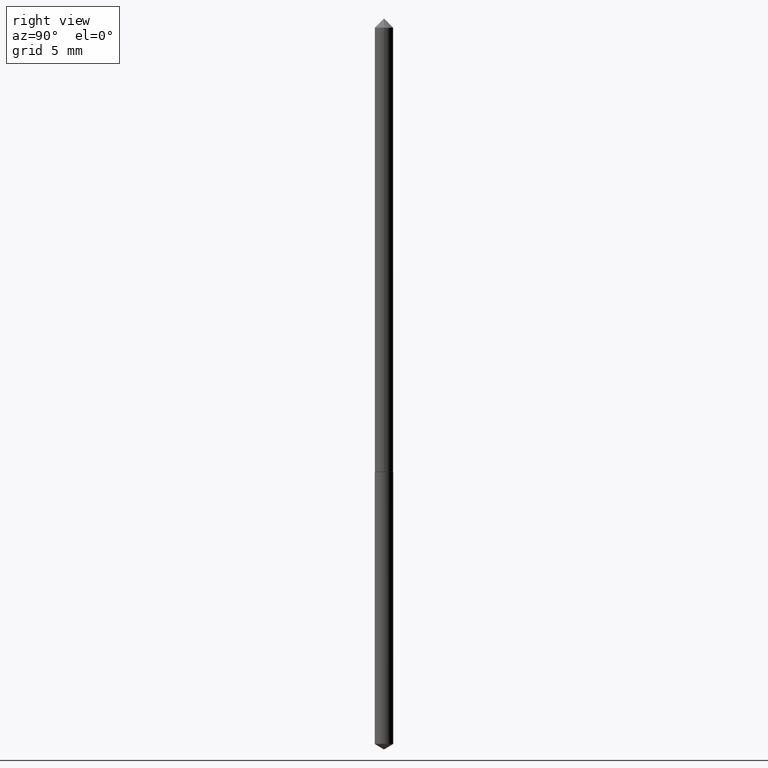
[diagram: clean part render]
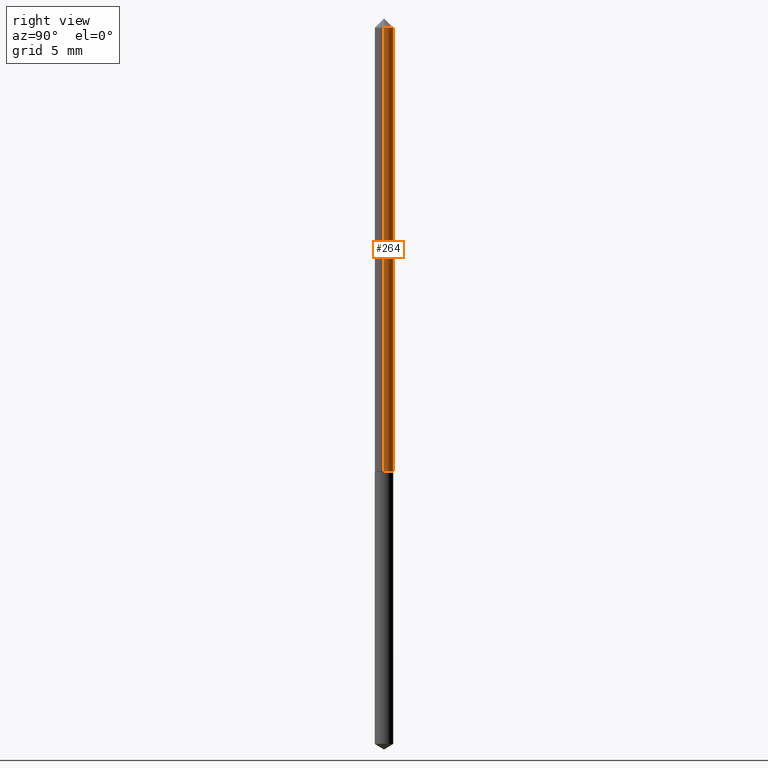
[diagram: same view with one face highlighted and labeled with its STEP entity id]
A machine part, right view. The second image highlights one B-rep face of the part: STEP entity #264.
In plain terms, the highlighted cylindrical surface (edge-blend (fillet) strip) has radius 0.3962 mm, axis along (-0, 0, 1).
Its self-contained STEP definition (entity closure, byte-faithful):
#1 = DIRECTION ( 'NONE',  ( -2.445468806185136597E-29, 3.491481338843145583E-15, 1.000000000000000000 ) ) ;
#12 = VERTEX_POINT ( 'NONE', #126 ) ;
#26 = DIRECTION ( 'NONE',  ( -2.445468806185136597E-29, 3.491481338843145583E-15, 1.000000000000000000 ) ) ;
#48 = CARTESIAN_POINT ( 'NONE',  ( 7.642090019328600035E-31, -1.091087918388489897E-16, -0.03125000000000020123 ) ) ;
#56 = CYLINDRICAL_SURFACE ( 'NONE', #228, 0.01560000000000004959 ) ;
#63 = ORIENTED_EDGE ( 'NONE', *, *, #338, .T. ) ;
#67 = EDGE_LOOP ( 'NONE', ( #63, #206, #125, #354 ) ) ;
#71 = CIRCLE ( 'NONE', #168, 0.01560000000000000275 ) ;
#99 = EDGE_CURVE ( 'NONE', #296, #263, #157, .T. ) ;
#101 = LINE ( 'NONE', #128, #243 ) ;
#106 = DIRECTION ( 'NONE',  ( 1.000000000000000000, -6.982962677686266711E-15, 4.876176775795935793E-29 ) ) ;
#107 = CARTESIAN_POINT ( 'NONE',  ( 0.000000000000000000, 0.000000000000000000, 0.000000000000000000 ) ) ;
#112 = DIRECTION ( 'NONE',  ( 1.000000000000000000, -6.982962677686272233E-15, 0.000000000000000000 ) ) ;
#125 = ORIENTED_EDGE ( 'NONE', *, *, #137, .F. ) ;
#126 = CARTESIAN_POINT ( 'NONE',  ( 0.01560000000000009469, -2.834733699006751091E-15, -0.7807000000000001716 ) ) ;
#128 = CARTESIAN_POINT ( 'NONE',  ( 0.01560000000000004959, -1.089342177719061121E-16, 7.606835770241683722E-31 ) ) ;
#135 = CIRCLE ( 'NONE', #319, 0.01560000000000009469 ) ;
#137 = EDGE_CURVE ( 'NONE', #208, #263, #71, .T. ) ;
#138 = CARTESIAN_POINT ( 'NONE',  ( -0.01560000000000000275, -1.306609469758268803E-15, -0.03125000000000020123 ) ) ;
#157 = LINE ( 'NONE', #306, #237 ) ;
#168 = AXIS2_PLACEMENT_3D ( 'NONE', #48, #184, #334 ) ;
#184 = DIRECTION ( 'NONE',  ( -2.445468806185136597E-29, 3.491481338843145583E-15, 1.000000000000000000 ) ) ;
#192 = EDGE_CURVE ( 'NONE', #12, #208, #101, .T. ) ;
#206 = ORIENTED_EDGE ( 'NONE', *, *, #99, .T. ) ;
#208 = VERTEX_POINT ( 'NONE', #275 ) ;
#220 = CARTESIAN_POINT ( 'NONE',  ( 1.909177496988736613E-29, -2.725799481234844535E-15, -0.7807000000000001716 ) ) ;
#224 = FACE_OUTER_BOUND ( 'NONE', #67, .T. ) ;
#228 = AXIS2_PLACEMENT_3D ( 'NONE', #107, #26, #106 ) ;
#237 = VECTOR ( 'NONE', #329, 39.37007874015748143 ) ;
#243 = VECTOR ( 'NONE', #330, 39.37007874015748143 ) ;
#263 = VERTEX_POINT ( 'NONE', #138 ) ;
#264 = ADVANCED_FACE ( 'NONE', ( #224 ), #56, .T. ) ;
#275 = CARTESIAN_POINT ( 'NONE',  ( 0.01560000000000000275, -2.180430096107547937E-16, -0.03125000000000020123 ) ) ;
#282 = CARTESIAN_POINT ( 'NONE',  ( -0.01560000000000009469, -2.614954814456268098E-15, -0.7807000000000001716 ) ) ;
#296 = VERTEX_POINT ( 'NONE', #282 ) ;
#306 = CARTESIAN_POINT ( 'NONE',  ( -0.01560000000000004959, 1.108446667785759814E-16, -7.673538740797677887E-31 ) ) ;
#319 = AXIS2_PLACEMENT_3D ( 'NONE', #220, #1, #112 ) ;
#329 = DIRECTION ( 'NONE',  ( -2.445468806185136877E-29, 3.491481338843145188E-15, 1.000000000000000000 ) ) ;
#330 = DIRECTION ( 'NONE',  ( -2.445468806185136877E-29, 3.491481338843145188E-15, 1.000000000000000000 ) ) ;
#334 = DIRECTION ( 'NONE',  ( 1.000000000000000000, -6.982962677686267499E-15, 0.000000000000000000 ) ) ;
#338 = EDGE_CURVE ( 'NONE', #12, #296, #135, .T. ) ;
#354 = ORIENTED_EDGE ( 'NONE', *, *, #192, .F. ) ;